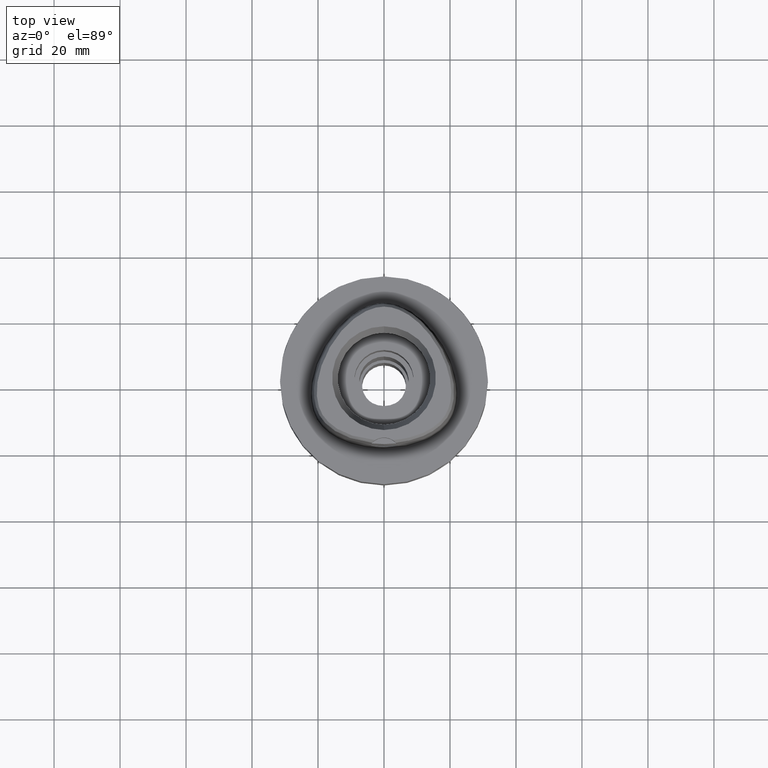
[diagram: clean part render]
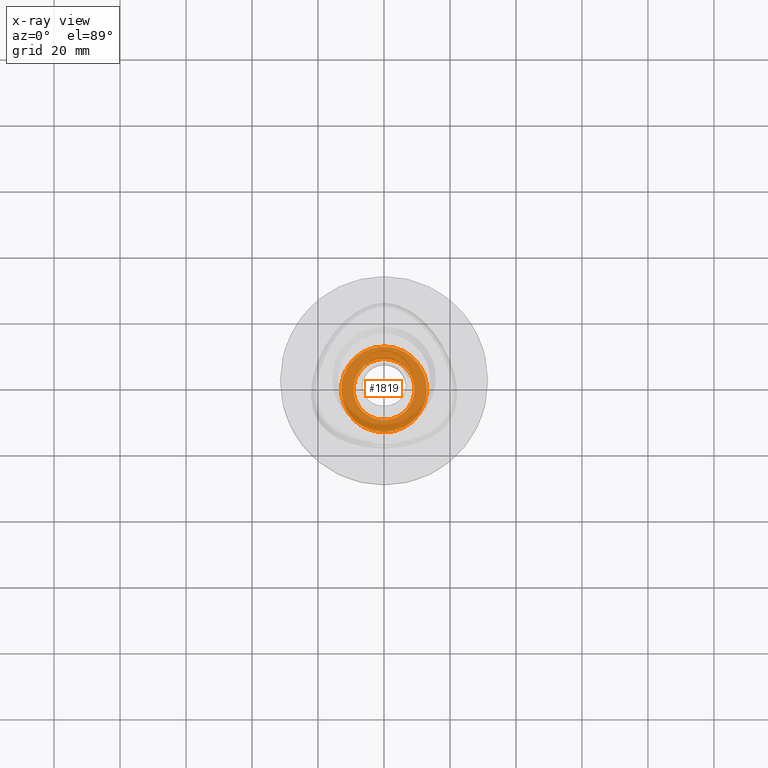
[diagram: x-ray — body ghosted, one internal face saturated and labeled with its STEP entity id]
A machine part, top view, then the same camera in x-ray: the body is ghosted and one INTERNAL B-rep face — a face not visible from any outside direction — is saturated and labeled: STEP entity #1819.
In plain terms, the highlighted planar face has unit normal (0, 0, -1).
Its self-contained STEP definition (entity closure, byte-faithful):
#419 = DIRECTION ( 'NONE',  ( 0.0000000000000000000, -1.000000000000000000, 0.0000000000000000000 ) ) ;
#501 = VERTEX_POINT ( 'NONE', #5047 ) ;
#636 = ORIENTED_EDGE ( 'NONE', *, *, #1701, .F. ) ;
#905 = ORIENTED_EDGE ( 'NONE', *, *, #1295, .F. ) ;
#1098 = CARTESIAN_POINT ( 'NONE',  ( 0.0000000000000000000, 13.00000000000000000, -11.00000000000000000 ) ) ;
#1166 = VERTEX_POINT ( 'NONE', #1098 ) ;
#1295 = EDGE_CURVE ( 'NONE', #4707, #1166, #3666, .T. ) ;
#1362 = DIRECTION ( 'NONE',  ( 0.0000000000000000000, 0.0000000000000000000, -1.000000000000000000 ) ) ;
#1391 = DIRECTION ( 'NONE',  ( 0.0000000000000000000, -1.000000000000000000, 0.0000000000000000000 ) ) ;
#1453 = EDGE_CURVE ( 'NONE', #1166, #4707, #4987, .T. ) ;
#1488 = EDGE_LOOP ( 'NONE', ( #3700, #636 ) ) ;
#1579 = CARTESIAN_POINT ( 'NONE',  ( 0.0000000000000000000, 0.0000000000000000000, -11.00000000000000000 ) ) ;
#1585 = CARTESIAN_POINT ( 'NONE',  ( 0.0000000000000000000, 0.0000000000000000000, -11.00000000000000000 ) ) ;
#1606 = EDGE_CURVE ( 'NONE', #501, #4025, #4207, .T. ) ;
#1615 = DIRECTION ( 'NONE',  ( 0.0000000000000000000, 0.0000000000000000000, 1.000000000000000000 ) ) ;
#1628 = EDGE_LOOP ( 'NONE', ( #1647, #905 ) ) ;
#1647 = ORIENTED_EDGE ( 'NONE', *, *, #1453, .F. ) ;
#1701 = EDGE_CURVE ( 'NONE', #4025, #501, #2324, .T. ) ;
#1819 = ADVANCED_FACE ( 'NONE', ( #3839, #4193 ), #2084, .F. ) ;
#2084 = PLANE ( 'NONE',  #2859 ) ;
#2324 = CIRCLE ( 'NONE', #4470, 9.250000000000000000 ) ;
#2545 = DIRECTION ( 'NONE',  ( 0.0000000000000000000, 0.0000000000000000000, -1.000000000000000000 ) ) ;
#2600 = AXIS2_PLACEMENT_3D ( 'NONE', #5461, #1615, #4587 ) ;
#2625 = DIRECTION ( 'NONE',  ( 0.0000000000000000000, 0.0000000000000000000, 1.000000000000000000 ) ) ;
#2746 = CARTESIAN_POINT ( 'NONE',  ( 0.0000000000000000000, 0.0000000000000000000, -11.00000000000000000 ) ) ;
#2859 = AXIS2_PLACEMENT_3D ( 'NONE', #1579, #3788, #3811 ) ;
#3115 = AXIS2_PLACEMENT_3D ( 'NONE', #1585, #2545, #4166 ) ;
#3666 = CIRCLE ( 'NONE', #4371, 13.00000000000000000 ) ;
#3700 = ORIENTED_EDGE ( 'NONE', *, *, #1606, .F. ) ;
#3788 = DIRECTION ( 'NONE',  ( 0.0000000000000000000, 0.0000000000000000000, -1.000000000000000000 ) ) ;
#3811 = DIRECTION ( 'NONE',  ( 0.0000000000000000000, -1.000000000000000000, 0.0000000000000000000 ) ) ;
#3839 = FACE_OUTER_BOUND ( 'NONE', #1628, .T. ) ;
#4025 = VERTEX_POINT ( 'NONE', #4711 ) ;
#4166 = DIRECTION ( 'NONE',  ( 0.0000000000000000000, 1.000000000000000000, 0.0000000000000000000 ) ) ;
#4193 = FACE_BOUND ( 'NONE', #1488, .T. ) ;
#4207 = CIRCLE ( 'NONE', #2600, 9.250000000000000000 ) ;
#4371 = AXIS2_PLACEMENT_3D ( 'NONE', #2746, #1362, #1391 ) ;
#4470 = AXIS2_PLACEMENT_3D ( 'NONE', #4831, #2625, #419 ) ;
#4587 = DIRECTION ( 'NONE',  ( 0.0000000000000000000, 1.000000000000000000, 0.0000000000000000000 ) ) ;
#4671 = CARTESIAN_POINT ( 'NONE',  ( 0.0000000000000000000, -13.00000000000000000, -11.00000000000000000 ) ) ;
#4707 = VERTEX_POINT ( 'NONE', #4671 ) ;
#4711 = CARTESIAN_POINT ( 'NONE',  ( 0.0000000000000000000, -9.250000000000000000, -11.00000000000000000 ) ) ;
#4831 = CARTESIAN_POINT ( 'NONE',  ( 0.0000000000000000000, 0.0000000000000000000, -11.00000000000000000 ) ) ;
#4987 = CIRCLE ( 'NONE', #3115, 13.00000000000000000 ) ;
#5047 = CARTESIAN_POINT ( 'NONE',  ( 0.0000000000000000000, 9.250000000000000000, -11.00000000000000000 ) ) ;
#5461 = CARTESIAN_POINT ( 'NONE',  ( 0.0000000000000000000, 0.0000000000000000000, -11.00000000000000000 ) ) ;